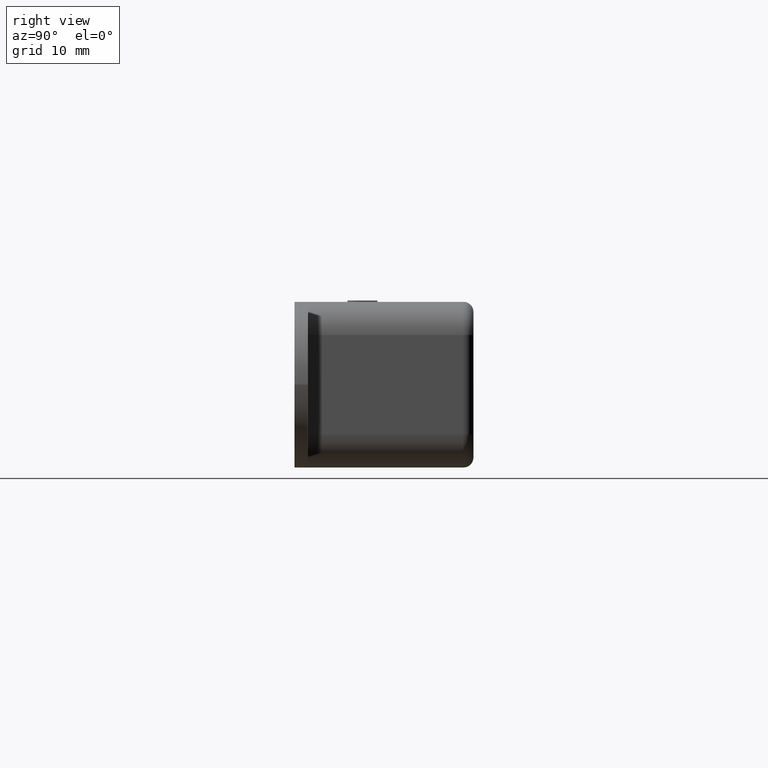
[diagram: clean part render]
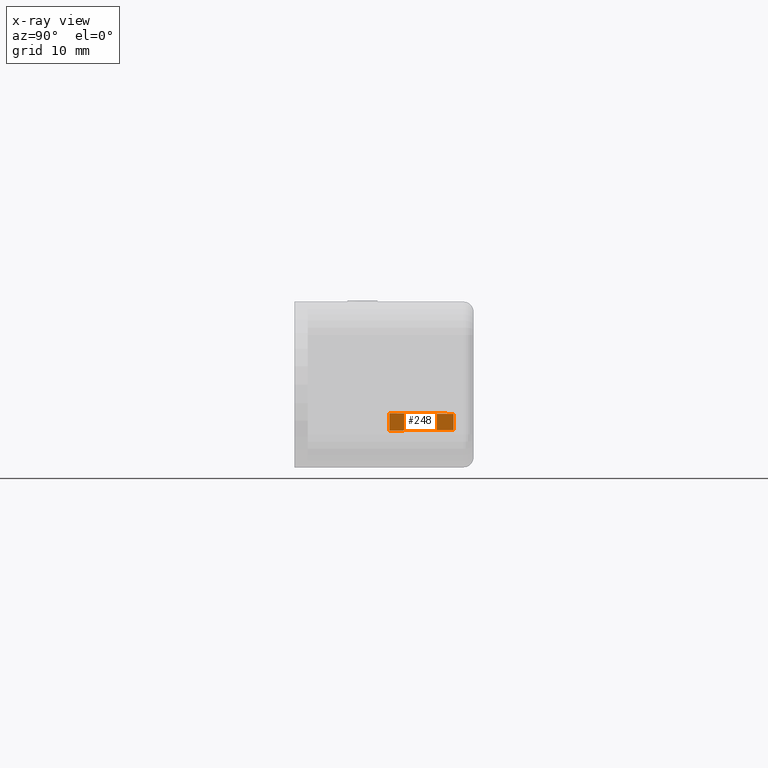
[diagram: x-ray — body ghosted, one internal face saturated and labeled with its STEP entity id]
A machine part, right view, then the same camera in x-ray: the body is ghosted and one INTERNAL B-rep face — a face not visible from any outside direction — is saturated and labeled: STEP entity #248.
In plain terms, the highlighted planar face has unit normal (-0.9998, 0.0175, 0).
Its self-contained STEP definition (entity closure, byte-faithful):
#248 = ADVANCED_FACE( '', ( #816 ), #817, .F. );
#816 = FACE_OUTER_BOUND( '', #1556, .T. );
#817 = PLANE( '', #1557 );
#1556 = EDGE_LOOP( '', ( #3434, #3435, #3436, #3437 ) );
#1557 = AXIS2_PLACEMENT_3D( '', #3438, #3439, #3440 );
#3434 = ORIENTED_EDGE( '', *, *, #5351, .T. );
#3435 = ORIENTED_EDGE( '', *, *, #5147, .F. );
#3436 = ORIENTED_EDGE( '', *, *, #5352, .F. );
#3437 = ORIENTED_EDGE( '', *, *, #5166, .F. );
#3438 = CARTESIAN_POINT( '', ( -25.2500000000000, 0.000000000000000, 1.44337567297407 ) );
#3439 = DIRECTION( '', ( -0.999847695156391, 0.0174524064372835, 2.77513483070255E-016 ) );
#3440 = DIRECTION( '', ( -0.0174524064372835, -0.999847695156391, 0.000000000000000 ) );
#5147 = EDGE_CURVE( '', #6423, #6424, #6425, .F. );
#5166 = EDGE_CURVE( '', #6453, #6455, #6456, .F. );
#5351 = EDGE_CURVE( '', #6453, #6424, #6721, .T. );
#5352 = EDGE_CURVE( '', #6455, #6423, #6722, .T. );
#6423 = VERTEX_POINT( '', #8261 );
#6424 = VERTEX_POINT( '', #8262 );
#6425 = LINE( '', #8263, #8264 );
#6453 = VERTEX_POINT( '', #8309 );
#6455 = VERTEX_POINT( '', #8312 );
#6456 = LINE( '', #8313, #8314 );
#6721 = LINE( '', #8719, #8720 );
#6722 = LINE( '', #8721, #8722 );
#8261 = CARTESIAN_POINT( '', ( -24.9999999999999, 14.3224904076968, -6.92820323027540 ) );
#8262 = CARTESIAN_POINT( '', ( -25.0000000000000, 14.3224904076893, -4.33012701892218 ) );
#8263 = CARTESIAN_POINT( '', ( -25.0000000000000, 14.3224904076894, -10.5000000000002 ) );
#8264 = VECTOR( '', #9783, 1000.00000000000 );
#8309 = CARTESIAN_POINT( '', ( -24.8310784417228, 24.0000000000000, -4.42765392606547 ) );
#8312 = CARTESIAN_POINT( '', ( -24.8310784417228, 24.0000000000000, -6.83067632313222 ) );
#8313 = CARTESIAN_POINT( '', ( -24.8310784417228, 24.0000000000000, -10.5000000000000 ) );
#8314 = VECTOR( '', #9802, 1000.00000000000 );
#8719 = CARTESIAN_POINT( '', ( -25.2452793886761, 0.270443641617830, -4.18851489784335 ) );
#8720 = VECTOR( '', #10075, 1000.00000000000 );
#8721 = CARTESIAN_POINT( '', ( -25.2485026017844, 0.0857858863196337, -7.07167627431003 ) );
#8722 = VECTOR( '', #10076, 1000.00000000000 );
#9783 = DIRECTION( '', ( 1.10336452617476E-030, 1.59011586205903E-014, -1.00000000000000 ) );
#9802 = DIRECTION( '', ( 2.77555756156289E-016, 3.42009679624876E-048, 1.00000000000000 ) );
#10075 = DIRECTION( '', ( -0.0174515205435363, -0.999796942337605, 0.0100756400835790 ) );
#10076 = DIRECTION( '', ( -0.0174515205435363, -0.999796942337605, -0.0100756400835790 ) );